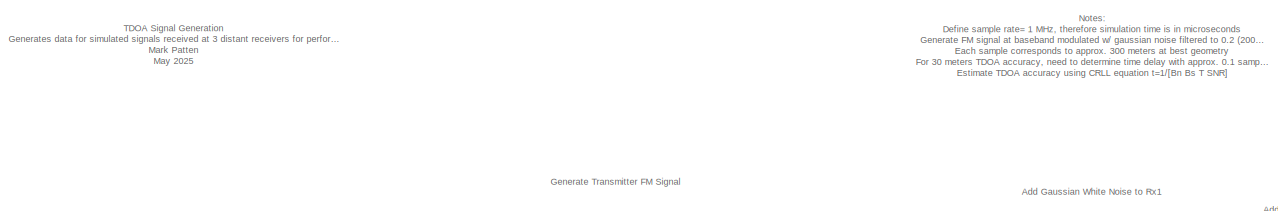
[diagram: root canvas - part 1/2, full width, top band]
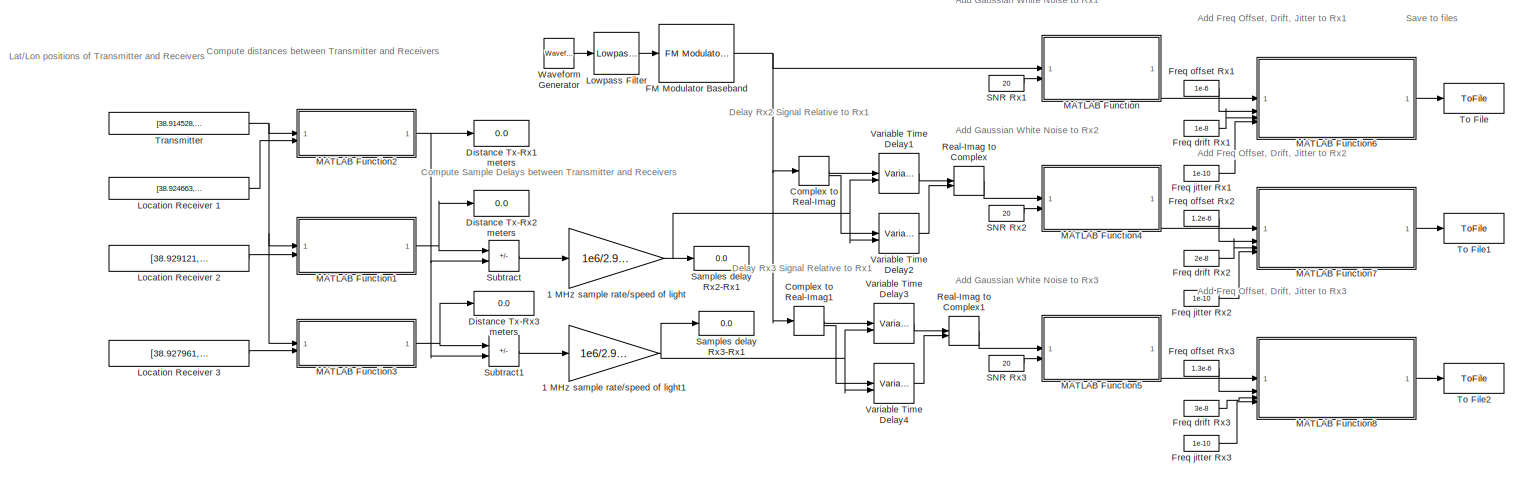
[diagram: root canvas - part 2/2, full width, middle band]
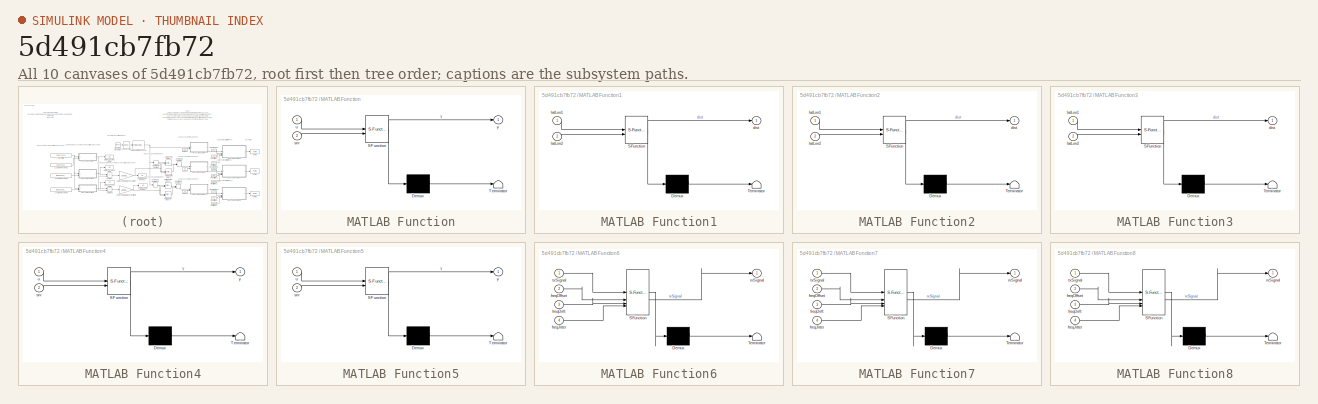
[diagram: thumbnail index - all 10 canvases of the model, root first then tree order]
MODEL slx_5d491cb7fb72
KIND model
CONFIG AbsTol = auto
CONFIG EnableMultiTasking = off
CONFIG FixedStep = auto
CONFIG MaxStep = auto
CONFIG MinStep = auto
CONFIG RelTol = 1e-3
CONFIG SampleTimeConstraint = Unconstrained
CONFIG SolverName = VariableStepAuto
CONFIG StartTime = 0.0
CONFIG StopTime = 100000
BLOCK [Gain] 1 MHz sample rate//speed of light
  Gain = 1e6/2.9979e8
BLOCK [Gain] 1 MHz sample rate//speed of light1
  Gain = 1e6/2.9979e8
BLOCK [ComplexToRealImag] Complex to Real-Imag
BLOCK [ComplexToRealImag] Complex to Real-Imag1
BLOCK [Display] Distance Tx-Rx1 meters
  Decimation = 1
BLOCK [Display] Distance Tx-Rx2 meters
  Decimation = 1
BLOCK [Display] Distance Tx-Rx3 meters
  Decimation = 1
BLOCK [Reference] FM Modulator Baseband  REF=commanabbnd3/FM
Modulator
Baseband
  SourceBlock = commanabbnd3/FM\nModulator\nBaseband
  SourceType = FM Modulator Baseband
BLOCK [Constant] Freq drift Rx1
  Value = 1e-8
BLOCK [Constant] Freq drift Rx2
  Value = 2e-8
BLOCK [Constant] Freq drift Rx3
  Value = 3e-8
BLOCK [Constant] Freq jitter Rx1
  Value = 1e-10
BLOCK [Constant] Freq jitter Rx2
  Value = 1e-10
BLOCK [Constant] Freq jitter Rx3
  Value = 1e-10
BLOCK [Constant] Freq offset Rx1
  Value = 1e-6
BLOCK [Constant] Freq offset Rx2
  Value = 1.2e-6
BLOCK [Constant] Freq offset Rx3
  Value = 1.3e-6
BLOCK [Constant] Location Receiver 1
  Value = [38.924663, -77.219303]
BLOCK [Constant] Location Receiver 2
  Value = [38.929121, -77.234954]
BLOCK [Constant] Location Receiver 3
  Value = [38.927961, -77.238297]
BLOCK [Reference] Lowpass Filter  REF=dspfdesign/Lowpass Filter
  SourceBlock = dspfdesign/Lowpass Filter
  SourceType = dsp.simulink.LowpassFilter
BLOCK [SubSystem] MATLAB Function
  ErrorFcn = Stateflow.Translate.translate
  PermitHierarchicalResolution = ExplicitOnly
  SFBlockType = MATLAB Function
  TreatAsAtomicUnit = on
BLOCK [Demux] MATLAB Function/ Demux 
  Outputs = 1
BLOCK [S-Function] MATLAB Function/ SFunction 
  EnableBusSupport = on
  FunctionName = sf_sfun
  PortCounts = [2 2]
  SFcnIsStateOwnerBlock = off
  SFunctionDeploymentMode = off
  Tag = Stateflow S-Function 4
BLOCK [Terminator] MATLAB Function/ Terminator 
BLOCK [Inport] MATLAB Function/snr
  Port = 2
BLOCK [Inport] MATLAB Function/u
BLOCK [Outport] MATLAB Function/y
BLOCK [SubSystem] MATLAB Function1
  ErrorFcn = Stateflow.Translate.translate
  PermitHierarchicalResolution = ExplicitOnly
  SFBlockType = MATLAB Function
  TreatAsAtomicUnit = on
BLOCK [Demux] MATLAB Function1/ Demux 
  Outputs = 1
BLOCK [S-Function] MATLAB Function1/ SFunction 
  EnableBusSupport = on
  FunctionName = sf_sfun
  PortCounts = [2 2]
  SFcnIsStateOwnerBlock = off
  SFunctionDeploymentMode = off
  Tag = Stateflow S-Function 1
BLOCK [Terminator] MATLAB Function1/ Terminator 
BLOCK [Outport] MATLAB Function1/dist
BLOCK [Inport] MATLAB Function1/latLon1
BLOCK [Inport] MATLAB Function1/latLon2
  Port = 2
BLOCK [SubSystem] MATLAB Function2
  ErrorFcn = Stateflow.Translate.translate
  PermitHierarchicalResolution = ExplicitOnly
  SFBlockType = MATLAB Function
  TreatAsAtomicUnit = on
BLOCK [Demux] MATLAB Function2/ Demux 
  Outputs = 1
BLOCK [S-Function] MATLAB Function2/ SFunction 
  EnableBusSupport = on
  FunctionName = sf_sfun
  PortCounts = [2 2]
  SFcnIsStateOwnerBlock = off
  SFunctionDeploymentMode = off
  Tag = Stateflow S-Function 3
BLOCK [Terminator] MATLAB Function2/ Terminator 
BLOCK [Outport] MATLAB Function2/dist
BLOCK [Inport] MATLAB Function2/latLon1
BLOCK [Inport] MATLAB Function2/latLon2
  Port = 2
BLOCK [SubSystem] MATLAB Function3
  ErrorFcn = Stateflow.Translate.translate
  PermitHierarchicalResolution = ExplicitOnly
  SFBlockType = MATLAB Function
  TreatAsAtomicUnit = on
BLOCK [Demux] MATLAB Function3/ Demux 
  Outputs = 1
BLOCK [S-Function] MATLAB Function3/ SFunction 
  EnableBusSupport = on
  FunctionName = sf_sfun
  PortCounts = [2 2]
  SFcnIsStateOwnerBlock = off
  SFunctionDeploymentMode = off
  Tag = Stateflow S-Function 2
BLOCK [Terminator] MATLAB Function3/ Terminator 
BLOCK [Outport] MATLAB Function3/dist
BLOCK [Inport] MATLAB Function3/latLon1
BLOCK [Inport] MATLAB Function3/latLon2
  Port = 2
BLOCK [SubSystem] MATLAB Function4
  ErrorFcn = Stateflow.Translate.translate
  PermitHierarchicalResolution = ExplicitOnly
  SFBlockType = MATLAB Function
  TreatAsAtomicUnit = on
BLOCK [Demux] MATLAB Function4/ Demux 
  Outputs = 1
BLOCK [S-Function] MATLAB Function4/ SFunction 
  EnableBusSupport = on
  FunctionName = sf_sfun
  PortCounts = [2 2]
  SFcnIsStateOwnerBlock = off
  SFunctionDeploymentMode = off
  Tag = Stateflow S-Function 5
BLOCK [Terminator] MATLAB Function4/ Terminator 
BLOCK [Inport] MATLAB Function4/snr
  Port = 2
BLOCK [Inport] MATLAB Function4/u
BLOCK [Outport] MATLAB Function4/y
BLOCK [SubSystem] MATLAB Function5
  ErrorFcn = Stateflow.Translate.translate
  PermitHierarchicalResolution = ExplicitOnly
  SFBlockType = MATLAB Function
  TreatAsAtomicUnit = on
BLOCK [Demux] MATLAB Function5/ Demux 
  Outputs = 1
BLOCK [S-Function] MATLAB Function5/ SFunction 
  EnableBusSupport = on
  FunctionName = sf_sfun
  PortCounts = [2 2]
  SFcnIsStateOwnerBlock = off
  SFunctionDeploymentMode = off
  Tag = Stateflow S-Function 6
BLOCK [Terminator] MATLAB Function5/ Terminator 
BLOCK [Inport] MATLAB Function5/snr
  Port = 2
BLOCK [Inport] MATLAB Function5/u
BLOCK [Outport] MATLAB Function5/y
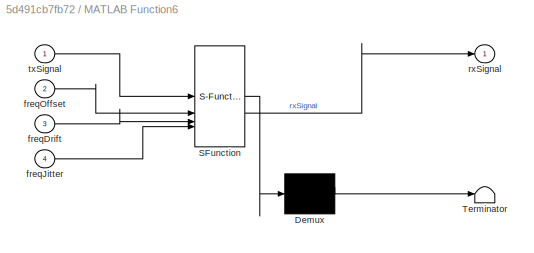
BLOCK [SubSystem] MATLAB Function6
  ErrorFcn = Stateflow.Translate.translate
  PermitHierarchicalResolution = ExplicitOnly
  SFBlockType = MATLAB Function
  TreatAsAtomicUnit = on
BLOCK [Demux] MATLAB Function6/ Demux 
  Outputs = 1
BLOCK [S-Function] MATLAB Function6/ SFunction 
  EnableBusSupport = on
  FunctionName = sf_sfun
  PortCounts = [4 2]
  SFcnIsStateOwnerBlock = off
  SFunctionDeploymentMode = off
  Tag = Stateflow S-Function 7
BLOCK [Terminator] MATLAB Function6/ Terminator 
BLOCK [Inport] MATLAB Function6/freqDrift
  Port = 3
BLOCK [Inport] MATLAB Function6/freqJitter
  Port = 4
BLOCK [Inport] MATLAB Function6/freqOffset
  Port = 2
BLOCK [Outport] MATLAB Function6/rxSignal
BLOCK [Inport] MATLAB Function6/txSignal
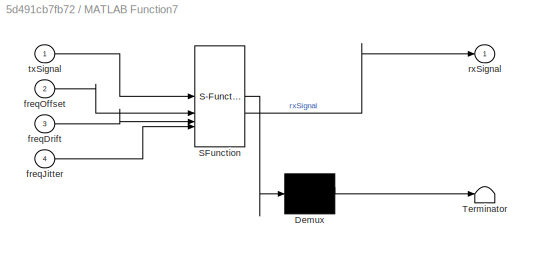
BLOCK [SubSystem] MATLAB Function7
  ErrorFcn = Stateflow.Translate.translate
  PermitHierarchicalResolution = ExplicitOnly
  SFBlockType = MATLAB Function
  TreatAsAtomicUnit = on
BLOCK [Demux] MATLAB Function7/ Demux 
  Outputs = 1
BLOCK [S-Function] MATLAB Function7/ SFunction 
  EnableBusSupport = on
  FunctionName = sf_sfun
  PortCounts = [4 2]
  SFcnIsStateOwnerBlock = off
  SFunctionDeploymentMode = off
  Tag = Stateflow S-Function 8
BLOCK [Terminator] MATLAB Function7/ Terminator 
BLOCK [Inport] MATLAB Function7/freqDrift
  Port = 3
BLOCK [Inport] MATLAB Function7/freqJitter
  Port = 4
BLOCK [Inport] MATLAB Function7/freqOffset
  Port = 2
BLOCK [Outport] MATLAB Function7/rxSignal
BLOCK [Inport] MATLAB Function7/txSignal
BLOCK [SubSystem] MATLAB Function8
  ErrorFcn = Stateflow.Translate.translate
  PermitHierarchicalResolution = ExplicitOnly
  SFBlockType = MATLAB Function
  TreatAsAtomicUnit = on
BLOCK [Demux] MATLAB Function8/ Demux 
  Outputs = 1
BLOCK [S-Function] MATLAB Function8/ SFunction 
  EnableBusSupport = on
  FunctionName = sf_sfun
  PortCounts = [4 2]
  SFcnIsStateOwnerBlock = off
  SFunctionDeploymentMode = off
  Tag = Stateflow S-Function 9
BLOCK [Terminator] MATLAB Function8/ Terminator 
BLOCK [Inport] MATLAB Function8/freqDrift
  Port = 3
BLOCK [Inport] MATLAB Function8/freqJitter
  Port = 4
BLOCK [Inport] MATLAB Function8/freqOffset
  Port = 2
BLOCK [Outport] MATLAB Function8/rxSignal
BLOCK [Inport] MATLAB Function8/txSignal
BLOCK [RealImagToComplex] Real-Imag to Complex
BLOCK [RealImagToComplex] Real-Imag to Complex1
BLOCK [Constant] SNR Rx1
  Value = 20
BLOCK [Constant] SNR Rx2
  Value = 20
BLOCK [Constant] SNR Rx3
  Value = 20
BLOCK [Display] Samples delay Rx2-Rx1
  Decimation = 1
BLOCK [Display] Samples delay Rx3-Rx1
  Decimation = 1
BLOCK [Sum] Subtract
  IconShape = rectangular
  Inputs = +-
BLOCK [Sum] Subtract1
  IconShape = rectangular
  Inputs = +-
BLOCK [ToFile] To File
  Filename = rx1.mat
  SaveFormat = Timeseries
BLOCK [ToFile] To File1
  Filename = rx2.mat
  SaveFormat = Timeseries
BLOCK [ToFile] To File2
  Filename = rx3.mat
  SaveFormat = Timeseries
BLOCK [Constant] Transmitter
  Value = [38.914528, -77.219441]
BLOCK [VariableTransportDelay] Variable Time Delay1
  MaximumDelay = 10
BLOCK [VariableTransportDelay] Variable Time Delay2
  MaximumDelay = 10
BLOCK [VariableTransportDelay] Variable Time Delay3
  MaximumDelay = 10
BLOCK [VariableTransportDelay] Variable Time Delay4
  MaximumDelay = 10
BLOCK [Reference] Waveform Generator  REF=simulink/Sources/Waveform
Generator
  SourceBlock = simulink/Sources/Waveform\nGenerator
  SourceType = WaveformGenerator
ANNOTATION (root): TDOA Signal Generation Generates data for simulated signals received at 3 distant receivers for performing TDOA computations Mark Patten May 2025
ANNOTATION (root): Add Freq Offset, Drift, Jitter to Rx1
ANNOTATION (root): Add Freq Offset, Drift, Jitter to Rx2
ANNOTATION (root): Add Freq Offset, Drift, Jitter to Rx3
ANNOTATION (root): Add Gaussian White Noise to Rx1
ANNOTATION (root): Add Gaussian White Noise to Rx2
ANNOTATION (root): Add Gaussian White Noise to Rx3
ANNOTATION (root): Compute Sample Delays between Transmitter and Receivers
ANNOTATION (root): Compute distances between Transmitter and Receivers
ANNOTATION (root): Delay Rx2 Signal Relative to Rx1
ANNOTATION (root): Delay Rx3 Signal Relative to Rx1
ANNOTATION (root): Generate Transmitter FM Signal
ANNOTATION (root): Lat/Lon positions of Transmitter and Receivers
ANNOTATION (root): Save to files
ANNOTATION (root): Notes: Define sample rate= 1 MHz, therefore simulation time is in microseconds Generate FM signal at baseband modulated w/ gaussian noise filtered to 0.2 (200 kHz) BW Each sample corresponds to approx. 300 meters at best geometry For 30 meters TDOA accuracy, need to determine time delay with approx. 0.1 sample rate resolution: Estimate TDOA accuracy using CRLL equation t=1/[Bn Bs T SNR] Bn=Bs=200k...<+120ch>
NET 1 MHz sample rate//speed of light1:1 -> Samples delay Rx3-Rx1:1, Variable Time Delay3:2, Variable Time Delay4:2
NET 1 MHz sample rate//speed of light:1 -> Samples delay Rx2-Rx1:1, Variable Time Delay1:2, Variable Time Delay2:2
LINE Complex to Real-Imag1:1 -> Variable Time Delay3:1
LINE Complex to Real-Imag1:2 -> Variable Time Delay4:1
LINE Complex to Real-Imag:1 -> Variable Time Delay1:1
LINE Complex to Real-Imag:2 -> Variable Time Delay2:1
NET FM Modulator Baseband:1 -> Complex to Real-Imag1:1, Complex to Real-Imag:1, MATLAB Function:1
LINE Freq drift Rx1:1 -> MATLAB Function6:3
LINE Freq drift Rx2:1 -> MATLAB Function7:3
LINE Freq drift Rx3:1 -> MATLAB Function8:3
LINE Freq jitter Rx1:1 -> MATLAB Function6:4
LINE Freq jitter Rx2:1 -> MATLAB Function7:4
LINE Freq jitter Rx3:1 -> MATLAB Function8:4
LINE Freq offset Rx1:1 -> MATLAB Function6:2
LINE Freq offset Rx2:1 -> MATLAB Function7:2
LINE Freq offset Rx3:1 -> MATLAB Function8:2
LINE Location Receiver 1:1 -> MATLAB Function2:2
LINE Location Receiver 2:1 -> MATLAB Function1:2
LINE Location Receiver 3:1 -> MATLAB Function3:2
LINE Lowpass Filter:1 -> FM Modulator Baseband:1
NET MATLAB Function1:1 -> Distance Tx-Rx2 meters:1, Subtract:1
NET MATLAB Function2:1 -> Distance Tx-Rx1 meters:1, Subtract1:2, Subtract:2
NET MATLAB Function3:1 -> Distance Tx-Rx3 meters:1, Subtract1:1
LINE MATLAB Function4:1 -> MATLAB Function7:1
LINE MATLAB Function5:1 -> MATLAB Function8:1
LINE MATLAB Function6:1 -> To File:1
LINE MATLAB Function7:1 -> To File1:1
LINE MATLAB Function8:1 -> To File2:1
LINE MATLAB Function:1 -> MATLAB Function6:1
LINE Real-Imag to Complex1:1 -> MATLAB Function5:1
LINE Real-Imag to Complex:1 -> MATLAB Function4:1
LINE SNR Rx1:1 -> MATLAB Function:2
LINE SNR Rx2:1 -> MATLAB Function4:2
LINE SNR Rx3:1 -> MATLAB Function5:2
LINE Subtract1:1 -> 1 MHz sample rate//speed of light1:1
LINE Subtract:1 -> 1 MHz sample rate//speed of light:1
NET Transmitter:1 -> MATLAB Function1:1, MATLAB Function2:1, MATLAB Function3:1
LINE Variable Time Delay1:1 -> Real-Imag to Complex:1
LINE Variable Time Delay2:1 -> Real-Imag to Complex:2
LINE Variable Time Delay3:1 -> Real-Imag to Complex1:1
LINE Variable Time Delay4:1 -> Real-Imag to Complex1:2
LINE Waveform Generator:1 -> Lowpass Filter:1
note: NET lines group one-source signal fan-out (src -> all destinations, sorted); 1:1 wires keep LINE
CHART MATLAB Function1 states=1 transitions=1
  STATE_LABEL 'eML_blk_kernel()'
  STATE_LABEL 'SCRIPT:\nfunction dist = latLonDist(latLon1,latLon2)\n% dist = latLonDist(latLon1,latLon2)\n% distance between two latitude/longitute positions in meters\n\navgLat = (latLon1(1) + latLon2(1))/2;\nearthCirc = 24901.55 * 5280 * 12 * 2.54 / 100;\ndistx = cosd(avgLat) * (latLon2(2) - latLon1(2)) * earthCirc / 360;\ndisty = (latLon2(1) - latLon1(1)) * earthCirc / 360;\ndist = (distx^2 + disty^2)^0.5;\n'  <repeated x3 — deduplicated; at blocks: MATLAB Function1, MATLAB Function3, MATLAB Function2>
CHART MATLAB Function3 states=1 transitions=1
  STATE_LABEL 'eML_blk_kernel()'
CHART MATLAB Function2 states=1 transitions=1
  STATE_LABEL 'eML_blk_kernel()'
CHART MATLAB Function states=1 transitions=1
  STATE_LABEL 'eML_blk_kernel()'
  STATE_LABEL 'SCRIPT:\nfunction y = addWhiteNoise(u,snr)\n\ny = u+randn(size(u))*(10^(snr/10));\n'
CHART MATLAB Function4 states=1 transitions=1
  STATE_LABEL 'eML_blk_kernel()'
  STATE_LABEL 'SCRIPT:\nfunction y = addWhiteNoise(u,snr)\n\ny = u+randn(size(u))*(10^(snr/10));\n'
CHART MATLAB Function5 states=1 transitions=1
  STATE_LABEL 'eML_blk_kernel()'
  STATE_LABEL 'SCRIPT:\nfunction y = addWhiteNoise(u,snr)\n\ny = u+randn(size(u))*(10^(snr/10));\n'
CHART MATLAB Function6 states=1 transitions=1
  STATE_LABEL 'eML_blk_kernel()'
  STATE_LABEL 'SCRIPT:\nfunction rxSignal = addFreqDriftJitter(txSignal,freqOffset,freqDrift,freqJitter)\n% function rxSignal = addFreqDriftJitter(txSignal,freqOffset,freqDrift,freqJitter)\n%\n% Simulates effects of imperfect receiver reference oscillators, causing frequency offset, drift, and jitter\n% rxSignal --- output signal with added frequency offset, drift, and jitter\n% r% txSignal --- input signal\n% freqOffs...<+508ch>'  <repeated x3 — deduplicated; at blocks: MATLAB Function6, MATLAB Function7, MATLAB Function8>
CHART MATLAB Function7 states=1 transitions=1
  STATE_LABEL 'eML_blk_kernel()'
CHART MATLAB Function8 states=1 transitions=1
  STATE_LABEL 'eML_blk_kernel()'
CHART  states=0 transitions=0
CHART  states=0 transitions=0
CHART  states=0 transitions=0
CHART  states=0 transitions=0
CHART  states=0 transitions=0
CHART  states=0 transitions=0
CHART  states=0 transitions=0
CHART  states=0 transitions=0
CHART  states=0 transitions=0
